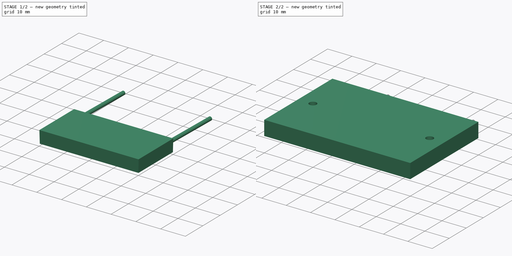
[diagram: build sequence overview — one tinted view per stage of 2, left to right]
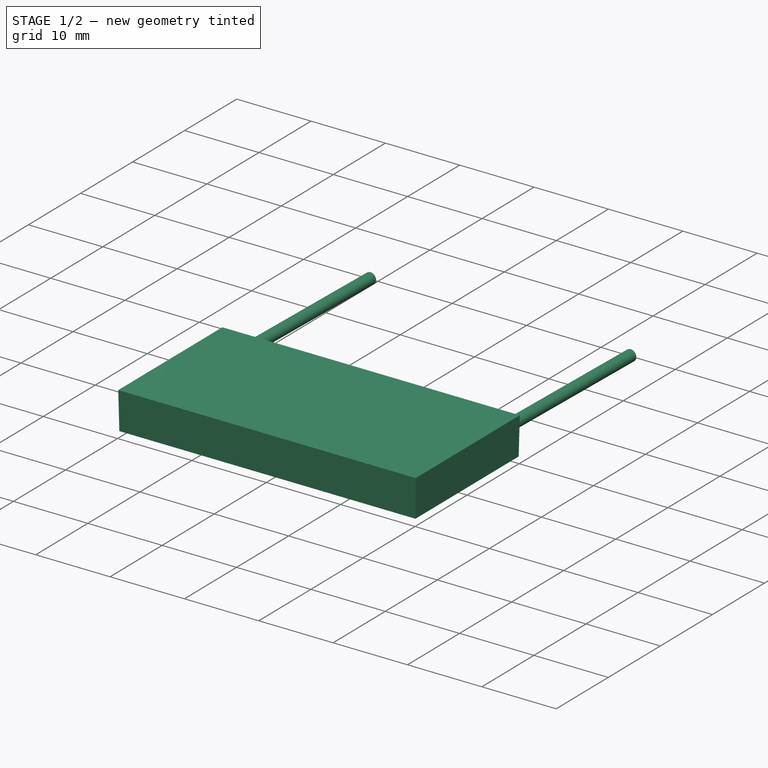
[diagram: stage 1 of 2 — iso view after this stage's code; geometry added in this stage tinted green]
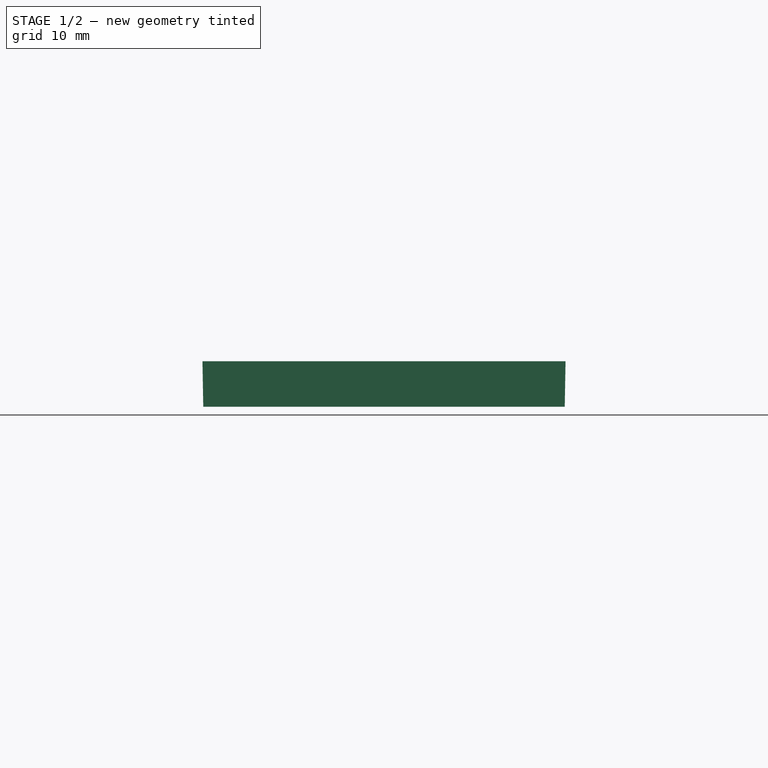
[diagram: stage 1 of 2 — front view after this stage's code; geometry added in this stage tinted green]
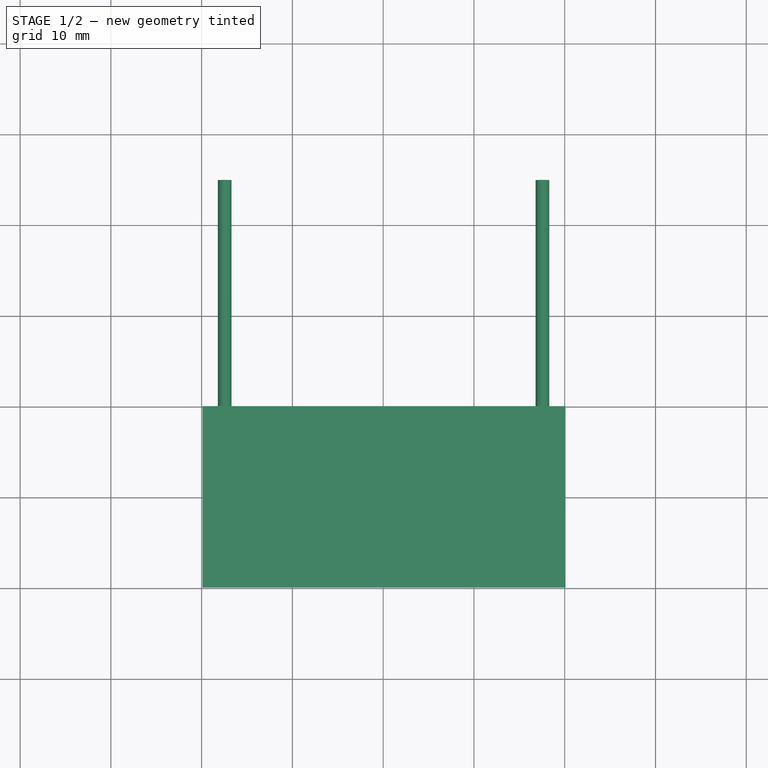
[diagram: stage 1 of 2 — top view after this stage's code; geometry added in this stage tinted green]
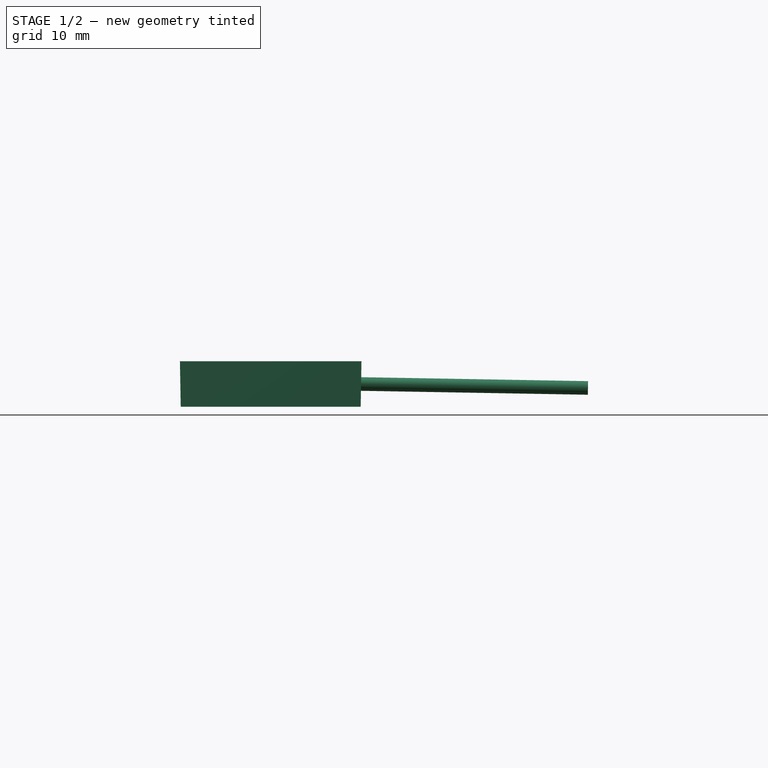
[diagram: stage 1 of 2 — right view after this stage's code; geometry added in this stage tinted green]
FCSTD DOCUMENT  (FreeCAD 0.21R33771 (Git))
Label: Config-Peltier-SHT-31
License: All rights reserved
LicenseURL: http://en.wikipedia.org/wiki/All_rights_reserved
objects: Part::Feature×20, App::Part×6, Sketcher::SketchObject×5, App::Link×5, PartDesign::Pad×4, PartDesign::Body×3, PartDesign::Plane×2, TechDraw::DrawSVGTemplate×1, TechDraw::DrawPage×1, PartDesign::CoordinateSystem×1
note: 39 computed .brp shape members not serialized (recipe doc carries the construction recipe); baked Part::Feature solids carry a one-line shape summary decoded from their .brp

FEATURE [Sketcher::SketchObject] Sketch
  FullyConstrained = true
  MapMode = 5
  Support = -> [XY_Plane]
  sketch-geometry (6):
    g0: Circle CenterX=-24.0764 CenterY=0.06715 CenterZ=0 NormalX=0 NormalY=0 NormalZ=1 AngleXU=0 Radius=1.5
    g1: Circle CenterX=23.9236 CenterY=0.06715 CenterZ=0 NormalX=0 NormalY=0 NormalZ=1 AngleXU=0 Radius=1.5
    g2: LineSegment StartX=-30.0764 StartY=20.0671 StartZ=0 EndX=29.9236 EndY=20.0671 EndZ=0
    g3: LineSegment StartX=29.9236 StartY=20.0671 StartZ=0 EndX=29.9236 EndY=-19.9329 EndZ=0
    g4: LineSegment StartX=29.9236 StartY=-19.9329 StartZ=0 EndX=-30.0764 EndY=-19.9329 EndZ=0
    g5: LineSegment StartX=-30.0764 StartY=-19.9329 StartZ=0 EndX=-30.0764 EndY=20.0671 EndZ=0
  constraints (18):
    c: Diameter(g1) = 3
    c: Diameter(g0) = 3
    c: Distance(g0,g-1) = 0.06715
    c: Coincident(g2,g3)
    c: Coincident(g3,g4)
    c: Coincident(g4,g5)
    c: Coincident(g5,g2)
    c: Horizontal(g2)
    c: Horizontal(g4)
    c: Vertical(g3)
    c: Vertical(g5)
    c: Distance(g3) = 40
    c: Distance(g2) = 60
    c: Distance(g1,g3) = 6
    c: Distance(g1,g2) = 20
    c: Distance(g0,g5) = 6
    c: Distance(g0,g2) = 20
    c: Block(g4)
FEATURE [PartDesign::Plane] DatumPlane
  Length = 60.9515
  MapMode = 5
  Placement = pos=(0,0,0) rot=(1,0,0;3.14159rad)
  ResizeMode = 0
  Width = 70.9193
FEATURE [Sketcher::SketchObject] Sketch002
  FullyConstrained = true
  MapMode = 5
  Placement = pos=(0,0,0) rot=(1,0,0;3.14159rad)
  Support = -> [DatumPlane]
  sketch-geometry (4):
    g0: LineSegment StartX=-19.909 StartY=9.99788 StartZ=0 EndX=20.091 EndY=9.99788 EndZ=0
    g1: LineSegment StartX=20.091 StartY=9.99788 StartZ=0 EndX=20.091 EndY=-10.0021 EndZ=0
    g2: LineSegment StartX=20.091 StartY=-10.0021 StartZ=0 EndX=-19.909 EndY=-10.0021 EndZ=0
    g3: LineSegment StartX=-19.909 StartY=-10.0021 StartZ=0 EndX=-19.909 EndY=9.99788 EndZ=0
  constraints (11):
    c: Coincident(g0,g1)
    c: Coincident(g1,g2)
    c: Coincident(g2,g3)
    c: Coincident(g3,g0)
    c: Horizontal(g0)
    c: Horizontal(g2)
    c: Vertical(g1)
    c: Vertical(g3)
    c: Distance(g0) = 40
    c: Distance(g1) = 20
    c: Block(g2)
FEATURE [PartDesign::Pad] Pad002
  Direction = (0,0,-1)
  Length = 5
  Length2 = 10
  Placement = pos=(0,0,0) rot=(1,0,0;3.14159rad)
  Profile = -> Sketch002
  ReferenceAxis = -> Sketch002 [N_Axis]
  TaperAngle = -1
  Type = 0
FEATURE [PartDesign::Body] Body002  label="Placa-Inf"
  Group = -> [Sketch003,Pad003]
  Origin = -> Origin002
  Placement = pos=(0,0,-12) rot=(0,0,1;0rad)
  Tip = -> Pad003
FEATURE [PartDesign::Plane] DatumPlane001
  Length = 61.1423
  MapMode = 45
  Placement = pos=(0.0910191,9.95852,-2.49818) rot=(0.58068,0.58068,0.570633;4.17868rad)
  ResizeMode = 0
  Support = -> [Pad002]
  Width = 60.1034
FEATURE [Sketcher::SketchObject] Sketch004
  FullyConstrained = true
  MapMode = 5
  Placement = pos=(0.0910191,9.95852,-2.49818) rot=(0.58068,0.58068,0.570633;4.17868rad)
  Support = -> [DatumPlane001]
  sketch-geometry (2):
    g0: Circle CenterX=0 CenterY=17.4497 CenterZ=0 NormalX=0 NormalY=0 NormalZ=1 AngleXU=0 Radius=0.75
    g1: Circle CenterX=0 CenterY=-17.5503 CenterZ=0 NormalX=0 NormalY=0 NormalZ=1 AngleXU=0 Radius=0.75
  constraints (6):
    c: Diameter(g0) = 1.5
    c: DistanceX(g-2,g0) = 0
    c: Block(g0)
    c: Diameter(g1) = 1.5
    c: DistanceX(g-2,g1) = 0
    c: DistanceY(g1,g0) = 35
FEATURE [PartDesign::Pad] Pad004
  BaseFeature = -> Pad002
  Direction = (0,0.999848,-0.0174524)
  Length = 25
  Length2 = 10
  Placement = pos=(0,0,0) rot=(1,0,0;3.14159rad)
  Profile = -> Sketch004
  ReferenceAxis = -> Sketch004 [N_Axis]
  Type = 0
FEATURE [PartDesign::Body] Body001  label="Peltier"
  Group = -> [DatumPlane,Sketch002,Pad002,DatumPlane001,Sketch004,Pad004]
  Origin = -> Origin001
  Tip = -> Pad004
FEATURE [TechDraw::DrawSVGTemplate] Template
  EditableTexts = Designed_by_Name=Designed by Name; Drawing_number=Drawing number; FC-Date=Date; FC-SC=Scale; FC-SH=Sheet; FC-Title=Title; Subtitle=Subtitle; Weight=Weight
  Height = 210
  Orientation = 1
  Template = /app/share/Mod/TechDraw/Templates/A4_LandscapeTD.svg
  Width = 297
FEATURE [TechDraw::DrawPage] Page
  KeepUpdated = true
  NextBalloonIndex = 1
  ProjectionType = 0
  Template = -> Template
FEATURE [App::Link] C1_C_0402_1005Metric_d192c2b2ea53_ln_  label="C2_C_0402_1005Metric_1658226d8e7e"
  LinkPlacement = pos=(111.833,-63.559,-1.6) rot=(1,0,0;3.14159rad)
  LinkedObject = -> Shape001
  Placement = pos=(111.833,-63.559,-1.6) rot=(1,0,0;3.14159rad)
FEATURE [App::Link] C1_C_0402_1005Metric_d192c2b2ea53_ln_001  label="C3_C_0402_1005Metric_01c6ff6643bb"
  LinkPlacement = pos=(111.833,-62.43,-1.6) rot=(1,0,0;3.14159rad)
  LinkedObject = -> Shape001
  Placement = pos=(111.833,-62.43,-1.6) rot=(1,0,0;3.14159rad)
FEATURE [PartDesign::CoordinateSystem] Local_CS_2f17
  AttacherType = Attacher::AttachEngine3D
  MapMode = 2
  Support = -> [X_Axis004]
FEATURE [Sketcher::SketchObject] PCB_Sketch_2f17
  FullyConstrained = false
  sketch-geometry (8):
    g0: LineSegment StartX=107.605 StartY=-73.2 StartZ=0 EndX=107.605 EndY=-46.8 EndZ=0
    g1: LineSegment StartX=109.605 StartY=-44.8 StartZ=0 EndX=118.205 EndY=-44.8 EndZ=0
    g2: LineSegment StartX=118.205 StartY=-75.2 StartZ=0 EndX=109.605 EndY=-75.2 EndZ=0
    g3: LineSegment StartX=120.205 StartY=-46.8 StartZ=0 EndX=120.205 EndY=-73.2 EndZ=0
    g4: ArcOfCircle CenterX=109.605 CenterY=-73.2 CenterZ=0 NormalX=0 NormalY=0 NormalZ=-1 AngleXU=-1.5708 Radius=2 StartAngle=0 EndAngle=1.5708
    g5: ArcOfCircle CenterX=118.205 CenterY=-46.8 CenterZ=0 NormalX=0 NormalY=0 NormalZ=-1 AngleXU=1.5708 Radius=2 StartAngle=0 EndAngle=1.5708
    g6: ArcOfCircle CenterX=118.205 CenterY=-73.2 CenterZ=0 NormalX=0 NormalY=0 NormalZ=-1 AngleXU=3.14159 Radius=2 StartAngle=0 EndAngle=1.5708
    g7: ArcOfCircle CenterX=109.605 CenterY=-46.8 CenterZ=0 NormalX=0 NormalY=0 NormalZ=-1 AngleXU=-7.47076e-07 Radius=2 StartAngle=0 EndAngle=1.5708
  constraints (8):
    c: Coincident(g0,g4)
    c: Coincident(g0,g7)
    c: Coincident(g2,g4)
    c: Coincident(g1,g7)
    c: Coincident(g2,g6)
    c: Coincident(g1,g5)
    c: Coincident(g3,g6)
    c: Coincident(g3,g5)
FEATURE [Part::Feature] Part__Feature  label="101742"
  shape: bbox 1.1 x 0.201 x 1.8 mm, 7 faces (baked)
FEATURE [Part::Feature] Part__Feature001  label="101742001"
  shape: bbox 0.351 x 0.201 x 0.25 mm, 6 faces (baked)
FEATURE [Part::Feature] Part__Feature002  label="101742002"
  shape: bbox 0.351 x 0.201 x 0.25 mm, 6 faces (baked)
FEATURE [Part::Feature] Part__Feature003  label="101742003"
  shape: bbox 2.5 x 0.9 x 2.502 mm, 35 faces (baked)
FEATURE [Part::Feature] Part__Feature004  label="101742004"
  shape: bbox 0.351 x 0.201 x 0.25 mm, 6 faces (baked)
FEATURE [Part::Feature] Part__Feature005  label="101742005"
  shape: bbox 0.351 x 0.201 x 0.25 mm, 6 faces (baked)
FEATURE [Part::Feature] Part__Feature006  label="101742006"
  shape: bbox 0.351 x 0.201 x 0.25 mm, 6 faces (baked)
FEATURE [Part::Feature] Part__Feature007  label="101742007"
  shape: bbox 0.351 x 0.201 x 0.25 mm, 6 faces (baked)
FEATURE [Part::Feature] Part__Feature008  label="101742008"
  shape: bbox 0.351 x 0.201 x 0.25 mm, 6 faces (baked)
FEATURE [Part::Feature] Part__Feature009  label="101742009"
  shape: bbox 0.351 x 0.201 x 0.25 mm, 6 faces (baked)
FEATURE [Part::Feature] Pcb_2f17
  shape: bbox 12.6 x 30.4 x 1.6 mm, 18 faces (baked)
FEATURE [App::Link] R5_R_0402_1005Metric_797997fb0b97_ln_  label="R2_R_0402_1005Metric_829ceb6efa6a"
  LinkPlacement = pos=(110.8,-60.5525,0) rot=(0,0,-1;1.5708rad)
  LinkedObject = -> Shape
  Placement = pos=(110.8,-60.5525,0) rot=(0,0,-1;1.5708rad)
FEATURE [App::Link] R5_R_0402_1005Metric_797997fb0b97_ln_001  label="R1_R_0402_1005Metric_ec852b3c802f"
  LinkPlacement = pos=(112.9,-60.5525,0) rot=(0,0,-1;1.5708rad)
  LinkedObject = -> Shape
  Placement = pos=(112.9,-60.5525,0) rot=(0,0,-1;1.5708rad)
FEATURE [App::Link] R5_R_0402_1005Metric_797997fb0b97_ln_002  label="R3_R_0402_1005Metric_8c00b8cbb7bc"
  LinkPlacement = pos=(116.547,-66.19,-1.6) rot=(0,1,0;3.14159rad)
  LinkedObject = -> Shape
  Placement = pos=(116.547,-66.19,-1.6) rot=(0,1,0;3.14159rad)
FEATURE [Part::Feature] Shape  label="R5_R_0402_1005Metric_797997fb0b97"
  Placement = pos=(111.45,-65.905,0) rot=(0,0,1;0rad)
  shape: bbox 1 x 0.5 x 0.35 mm, 26 faces (baked)
FEATURE [Part::Feature] Shape001  label="C1_C_0402_1005Metric_d192c2b2ea53"
  Placement = pos=(111.833,-64.705,-1.6) rot=(1,0,0;3.14159rad)
  shape: bbox 1 x 0.5 x 0.5 mm, 28 faces (baked)
FEATURE [Part::Feature] Shape002  label="J3_PinHeader_1x03_P254mm_Vertical_d4f04b6ae7cd"
  Placement = pos=(116.025,-57.455,-1.6) rot=(0.707107,0.707107,0;3.14159rad)
  shape: bbox 7.62 x 2.54 x 11.54 mm, 76 faces (baked)
FEATURE [Part::Feature] Shape003  label="D1_LED_0402_1005Metric_169174173cb3"
  Placement = pos=(116.545,-65.015,-1.6) rot=(0,1,0;3.14159rad)
  shape: bbox 1 x 0.5 x 0.5 mm, 50 faces (baked)
FEATURE [Part::Feature] Shape004  label="J1_PinHeader_1x04_P254mm_Vertical_7061d42c5918"
  Placement = pos=(117.725,-72.924,-1.6) rot=(0.707107,0.707107,0;3.14159rad)
  shape: bbox 10.16 x 2.54 x 11.54 mm, 100 faces (baked)
FEATURE [App::Part] Bot_2f17
  Group = -> [Shape001,Shape002,R5_R_0402_1005Metric_797997fb0b97_ln_002,Shape003,C1_C_0402_1005Metric_d192c2b2ea53_ln_,Shape004,C1_C_0402_1005Metric_d192c2b2ea53_ln_001]
  Origin = -> Origin007
FEATURE [Part::Feature] Shape006  label="topTracks_2f17"
  Placement = pos=(0,0,0.01) rot=(0,0,1;0rad)
  shape: bbox 9.67 x 9.156 x 2e-07 mm, 12 faces, 0 solids (baked)
FEATURE [Part::Feature] Shape008  label="botTracks_2f17"
  Placement = pos=(0,0,-1.61) rot=(0,0,1;0rad)
  shape: bbox 9.88 x 12.62 x 2e-07 mm, 9 faces, 0 solids (baked)
FEATURE [App::Part] _01742  label="U1_101742010_618d7011a06c[2]"
  Group = -> [Part__Feature,Part__Feature001,Part__Feature002,Part__Feature003,Part__Feature004,Part__Feature005,Part__Feature006,Part__Feature007,Part__Feature008,Part__Feature009]
  Origin = -> Origin008
  Placement = pos=(111.85,-63.505,0) rot=(0.57735,-0.57735,-0.57735;2.0944rad)
FEATURE [App::Part] Top_2f17
  Group = -> [_01742,Shape,R5_R_0402_1005Metric_797997fb0b97_ln_,R5_R_0402_1005Metric_797997fb0b97_ln_001]
  Origin = -> Origin006
FEATURE [App::Part] Step_Models_2f17
  Group = -> [Top_2f17,Bot_2f17]
  Origin = -> Origin005
FEATURE [Part::Feature] pads_area001  label="topPads_2f17"
  Placement = pos=(0,0,0.02) rot=(0,0,1;0rad)
  shape: bbox 9.57 x 27.27 x 2e-07 mm, 36 faces, 0 solids (baked)
FEATURE [Part::Feature] pads_area003  label="botPads_2f17"
  Placement = pos=(0,0,-1.62) rot=(0,0,1;0rad)
  shape: bbox 9.57 x 27.27 x 2e-07 mm, 28 faces, 0 solids (baked)
FEATURE [App::Part] Board_Geoms_2f17
  Group = -> [Pcb_2f17,PCB_Sketch_2f17,pads_area001,Shape006,pads_area003,Shape008]
  Origin = -> Origin003
FEATURE [App::Part] Board_2f17  label="SHT31-Breakout-rev01"
  Group = -> [Local_CS_2f17,Board_Geoms_2f17,Step_Models_2f17]
  Origin = -> Origin004
  Placement = pos=(74.75,-113.5,9.75) rot=(-0.707107,-0.707107,0;3.14159rad)
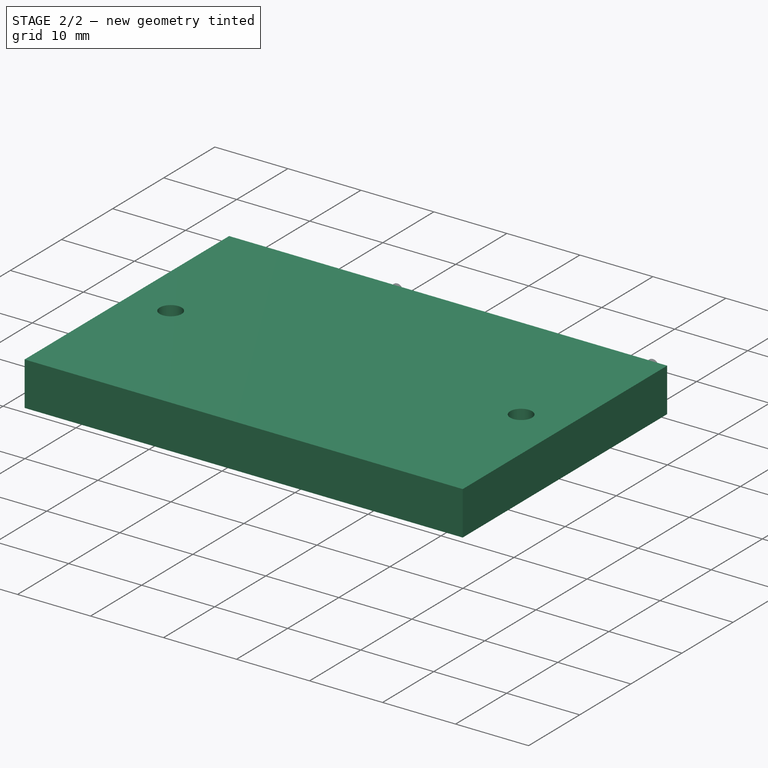
[diagram: stage 2 of 2 — iso view after this stage's code; geometry added in this stage tinted green]
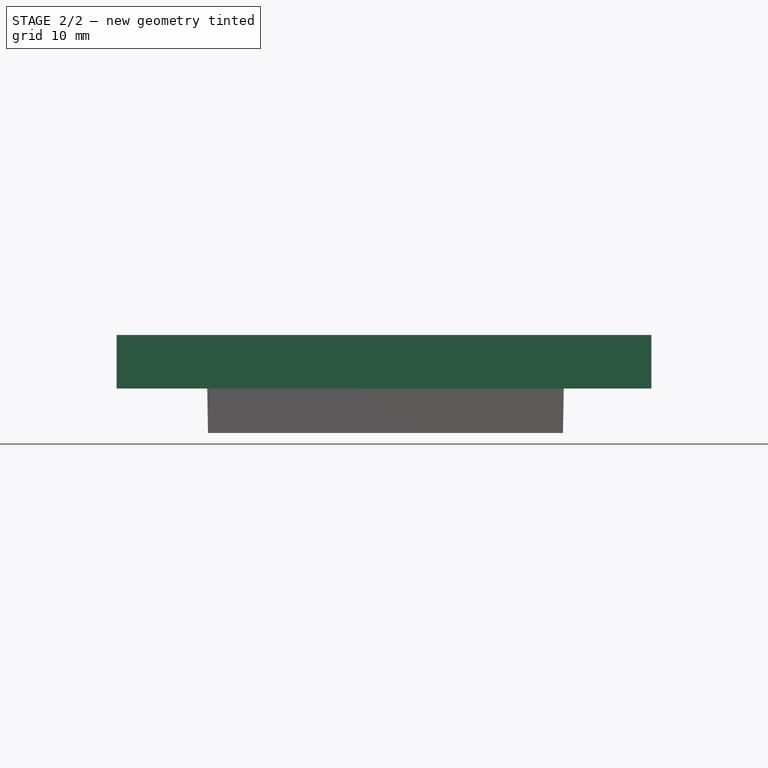
[diagram: stage 2 of 2 — front view after this stage's code; geometry added in this stage tinted green]
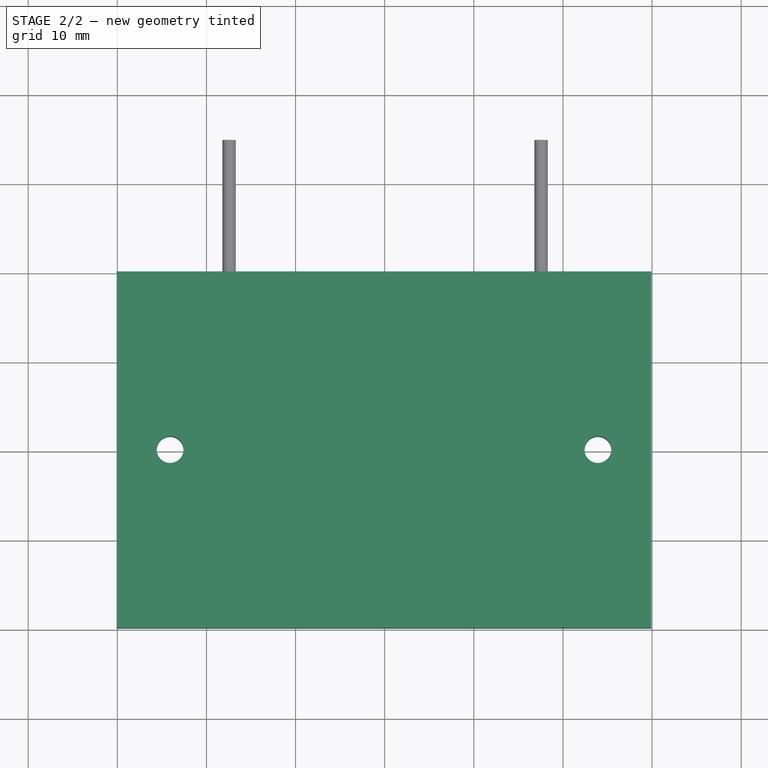
[diagram: stage 2 of 2 — top view after this stage's code; geometry added in this stage tinted green]
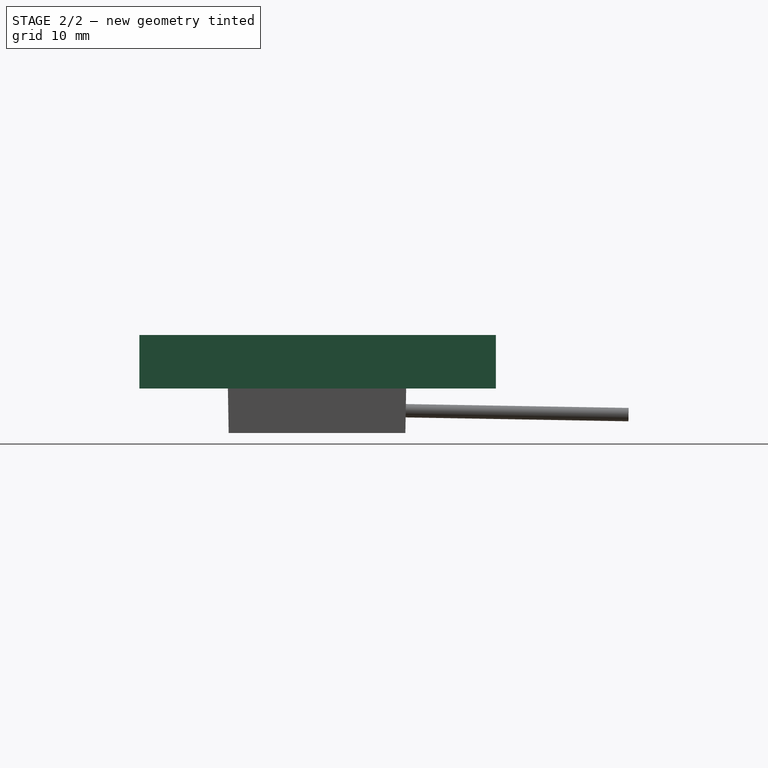
[diagram: stage 2 of 2 — right view after this stage's code; geometry added in this stage tinted green]
FEATURE [PartDesign::Pad] Pad
  Direction = (0,0,1)
  Length = 6
  Length2 = 10
  Profile = -> Sketch
  ReferenceAxis = -> Sketch [N_Axis]
  Type = 0
FEATURE [PartDesign::Body] Body  label="Placa-Sup"
  Group = -> [Sketch,Pad]
  Origin = -> Origin
  Placement = pos=(0,0,1) rot=(0,0,1;0rad)
  Tip = -> Pad
FEATURE [Sketcher::SketchObject] Sketch003
  FullyConstrained = true
  MapMode = 5
  Support = -> [XY_Plane002]
  sketch-geometry (6):
    g0: Circle CenterX=-24.0764 CenterY=0.06715 CenterZ=0 NormalX=0 NormalY=0 NormalZ=1 AngleXU=0 Radius=1.5
    g1: Circle CenterX=23.9236 CenterY=0.06715 CenterZ=0 NormalX=0 NormalY=0 NormalZ=1 AngleXU=0 Radius=1.5
    g2: LineSegment StartX=-30.0764 StartY=20.0671 StartZ=0 EndX=29.9236 EndY=20.0671 EndZ=0
    g3: LineSegment StartX=29.9236 StartY=20.0671 StartZ=0 EndX=29.9236 EndY=-19.9329 EndZ=0
    g4: LineSegment StartX=29.9236 StartY=-19.9329 StartZ=0 EndX=-30.0764 EndY=-19.9329 EndZ=0
    g5: LineSegment StartX=-30.0764 StartY=-19.9329 StartZ=0 EndX=-30.0764 EndY=20.0671 EndZ=0
  constraints (18):
    c: Diameter(g1) = 3
    c: Diameter(g0) = 3
    c: Distance(g0,g-1) = 0.06715
    c: Coincident(g2,g3)
    c: Coincident(g3,g4)
    c: Coincident(g4,g5)
    c: Coincident(g5,g2)
    c: Horizontal(g2)
    c: Horizontal(g4)
    c: Vertical(g3)
    c: Vertical(g5)
    c: Distance(g3) = 40
    c: Distance(g2) = 60
    c: Distance(g1,g3) = 6
    c: Distance(g1,g2) = 20
    c: Distance(g0,g5) = 6
    c: Distance(g0,g2) = 20
    c: Block(g4)
FEATURE [PartDesign::Pad] Pad003
  Direction = (0,0,1)
  Length = 6
  Length2 = 10
  Profile = -> Sketch003
  ReferenceAxis = -> Sketch003 [N_Axis]
  Type = 0
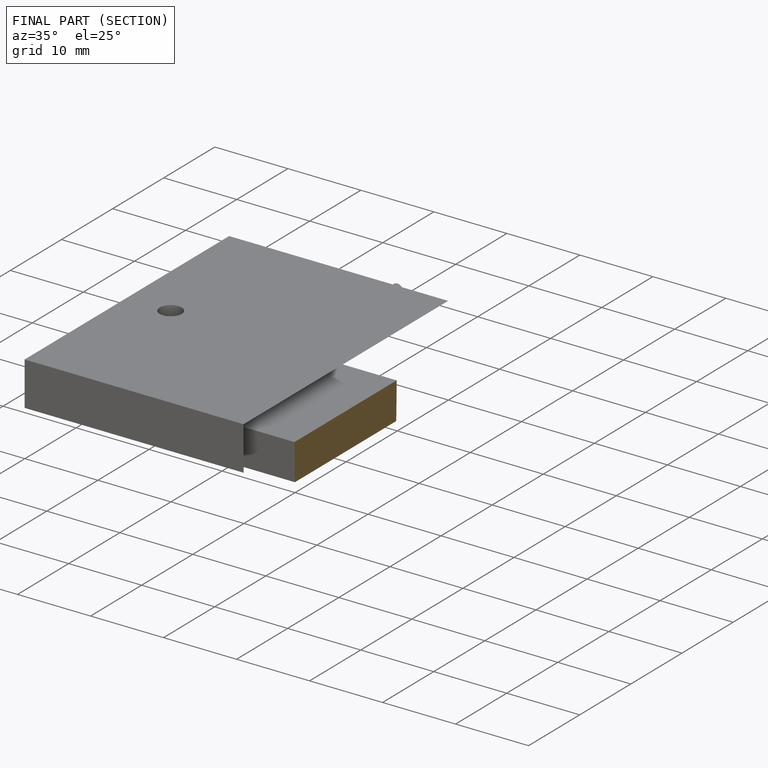
[diagram: finished part — half-section view (interior)]
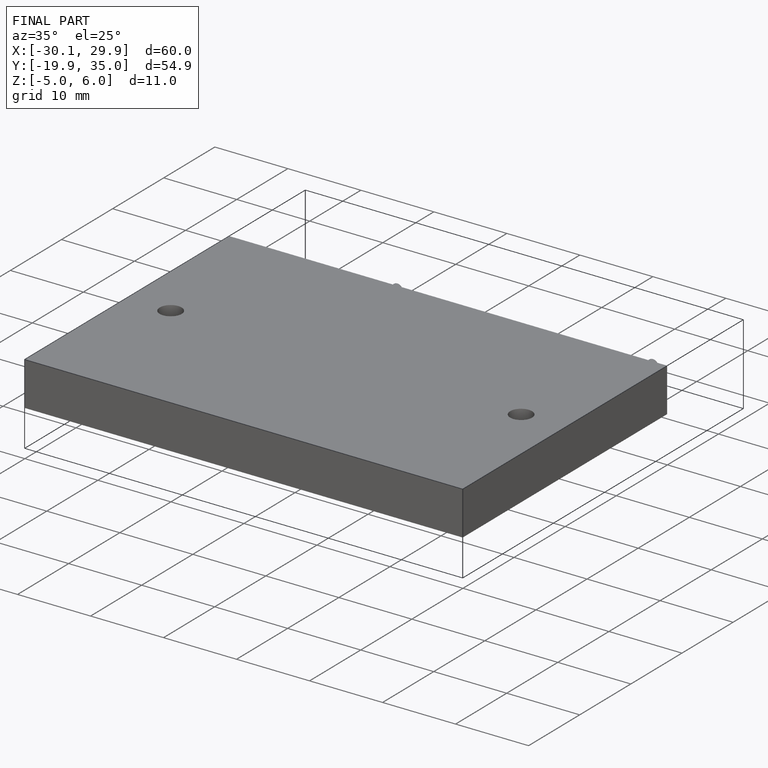
[diagram: finished part — iso view with bounding-box wireframe]
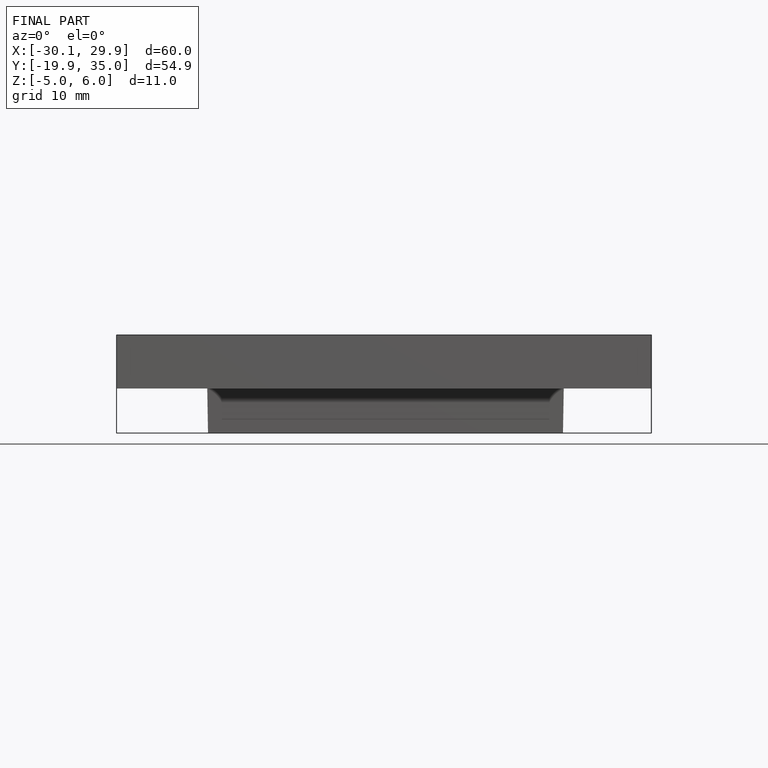
[diagram: finished part — front view with bounding-box wireframe]
